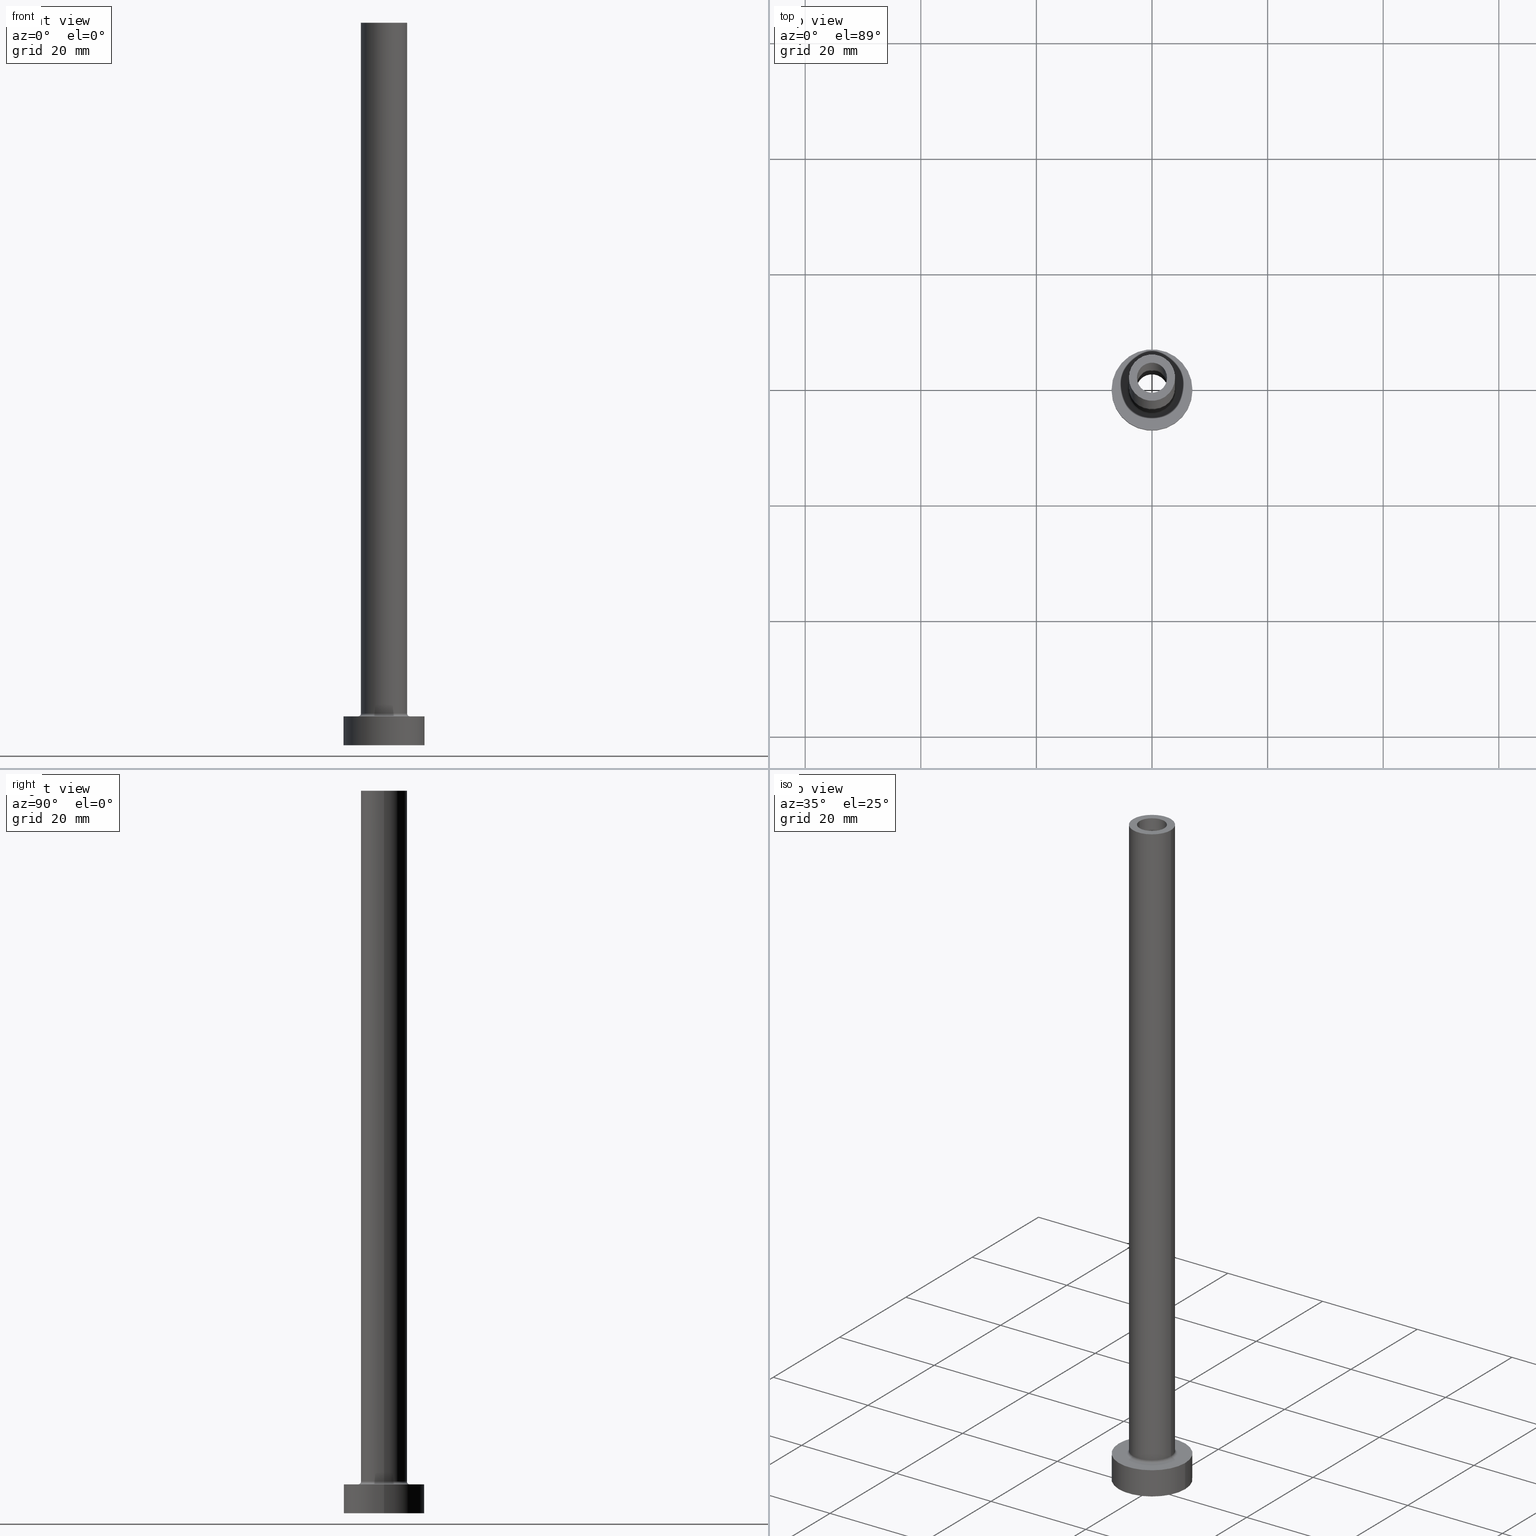
[diagram: canonical four-view strip — front | top / right | iso, engineering-drawing reading convention]
A machine part, canonical four-view strip (front | top / right | iso — engineering-drawing reading convention). The complete STEP part file that produces these views, byte-faithful:
ISO-10303-21;
HEADER;
FILE_DESCRIPTION (( 'STEP AP203' ),
    '1' );
FILE_NAME ('4615.STEP',
    '2023-02-13T10:12:05',
    ( '' ),
    ( '' ),
    'SwSTEP 2.0',
    'SolidWorks 2019',
    '' );
FILE_SCHEMA (( 'CONFIG_CONTROL_DESIGN' ));
ENDSEC;

DATA;
#1 = ORIENTED_EDGE ( 'NONE', *, *, #389, .F. ) ;
#2 = LINE ( 'NONE', #288, #407 ) ;
#3 = ORIENTED_EDGE ( 'NONE', *, *, #25, .F. ) ;
#4 = LOCAL_TIME ( 11, 12, 5.000000000000000000, #172 ) ;
#5 = CARTESIAN_POINT ( 'NONE',  ( 0.000000000000000000, 0.000000000000000000, 5.000000000000000000 ) ) ;
#6 = VERTEX_POINT ( 'NONE', #41 ) ;
#7 = CYLINDRICAL_SURFACE ( 'NONE', #377, 2.600000000000000089 ) ;
#8 = EDGE_CURVE ( 'NONE', #174, #317, #328, .T. ) ;
#9 = AXIS2_PLACEMENT_3D ( 'NONE', #343, #19, #392 ) ;
#10 = APPROVAL_PERSON_ORGANIZATION ( #87, #271, #92 ) ;
#11 = EDGE_CURVE ( 'NONE', #317, #174, #368, .T. ) ;
#12 = PERSON_AND_ORGANIZATION_ROLE ( 'creator' ) ;
#13 = DIRECTION ( 'NONE',  ( 1.000000000000000000, 0.000000000000000000, 0.000000000000000000 ) ) ;
#14 = CARTESIAN_POINT ( 'NONE',  ( 0.000000000000000000, 0.000000000000000000, 80.00000000000000000 ) ) ;
#15 = AXIS2_PLACEMENT_3D ( 'NONE', #311, #448, #65 ) ;
#16 = CARTESIAN_POINT ( 'NONE',  ( 2.750000000000000000, 3.367778697655221012E-16, 87.77817459305202874 ) ) ;
#17 = DIRECTION ( 'NONE',  ( 1.000000000000000000, 0.000000000000000000, 0.000000000000000000 ) ) ;
#18 = CC_DESIGN_DATE_AND_TIME_ASSIGNMENT ( #267, #83, ( #70 ) ) ;
#19 = DIRECTION ( 'NONE',  ( 0.000000000000000000, 0.000000000000000000, -1.000000000000000000 ) ) ;
#20 = FACE_OUTER_BOUND ( 'NONE', #183, .T. ) ;
#21 = ORIENTED_EDGE ( 'NONE', *, *, #399, .F. ) ;
#22 = DIRECTION ( 'NONE',  ( -0.000000000000000000, -0.000000000000000000, -1.000000000000000000 ) ) ;
#23 = DIRECTION ( 'NONE',  ( -1.000000000000000000, 0.000000000000000000, 0.000000000000000000 ) ) ;
#24 = ORIENTED_EDGE ( 'NONE', *, *, #367, .T. ) ;
#25 = EDGE_CURVE ( 'NONE', #394, #312, #123, .T. ) ;
#26 = CIRCLE ( 'NONE', #290, 4.000000000000000000 ) ;
#27 = UNCERTAINTY_MEASURE_WITH_UNIT (LENGTH_MEASURE( 1.000000000000000082E-05 ), #218, 'distance_accuracy_value', 'NONE');
#28 = CYLINDRICAL_SURFACE ( 'NONE', #333, 7.000000000000000000 ) ;
#29 = DIRECTION ( 'NONE',  ( 0.000000000000000000, 0.000000000000000000, -1.000000000000000000 ) ) ;
#30 = CARTESIAN_POINT ( 'NONE',  ( 0.000000000000000000, 0.000000000000000000, 5.500000000000005329 ) ) ;
#31 = DIRECTION ( 'NONE',  ( 0.000000000000000000, 0.000000000000000000, 1.000000000000000000 ) ) ;
#32 = ORIENTED_EDGE ( 'NONE', *, *, #109, .F. ) ;
#33 = FACE_OUTER_BOUND ( 'NONE', #245, .T. ) ;
#34 = ORIENTED_EDGE ( 'NONE', *, *, #441, .T. ) ;
#35 = AXIS2_PLACEMENT_3D ( 'NONE', #14, #199, #197 ) ;
#36 = APPROVAL_PERSON_ORGANIZATION ( #228, #438, #152 ) ;
#37 = ORIENTED_EDGE ( 'NONE', *, *, #193, .F. ) ;
#38 = ORIENTED_EDGE ( 'NONE', *, *, #399, .T. ) ;
#39 = APPLICATION_CONTEXT ( 'configuration controlled 3d designs of mechanical parts and assemblies' ) ;
#40 =( NAMED_UNIT ( * ) PLANE_ANGLE_UNIT ( ) SI_UNIT ( $, .RADIAN. ) );
#41 = CARTESIAN_POINT ( 'NONE',  ( -2.750000000000000000, 0.000000000000000000, 0.000000000000000000 ) ) ;
#42 = CC_DESIGN_SECURITY_CLASSIFICATION ( #411, ( #298 ) ) ;
#43 = LINE ( 'NONE', #331, #426 ) ;
#44 = EDGE_LOOP ( 'NONE', ( #144, #325 ) ) ;
#45 = CYLINDRICAL_SURFACE ( 'NONE', #261, 7.000000000000000000 ) ;
#46 = CARTESIAN_POINT ( 'NONE',  ( -4.500000000000000888, 5.510910596163089556E-16, 5.500000000000005329 ) ) ;
#47 = CIRCLE ( 'NONE', #15, 2.750000000000000000 ) ;
#48 = PRODUCT ( '4615', '4615', '', ( #81 ) ) ;
#49 = DIRECTION ( 'NONE',  ( 1.000000000000000000, 0.000000000000000000, 0.000000000000000000 ) ) ;
#50 = PERSON_AND_ORGANIZATION ( #241, #285 ) ;
#51 = DIRECTION ( 'NONE',  ( 1.224646799147353207E-16, 1.000000000000000000, -0.000000000000000000 ) ) ;
#52 = TOROIDAL_SURFACE ( 'NONE', #322, 4.500000000000000888, 0.5000000000000000000 ) ;
#53 = CARTESIAN_POINT ( 'NONE',  ( 0.000000000000000000, 0.000000000000000000, 5.500000000000005329 ) ) ;
#54 = CIRCLE ( 'NONE', #310, 7.000000000000000000 ) ;
#55 = MANIFOLD_SOLID_BREP ( 'Odebrat vysunut�m4', #107 ) ;
#56 = EDGE_CURVE ( 'NONE', #422, #226, #159, .T. ) ;
#57 = SECURITY_CLASSIFICATION_LEVEL ( 'unclassified' ) ;
#58 = VERTEX_POINT ( 'NONE', #158 ) ;
#59 = CALENDAR_DATE ( 2023, 13, 2 ) ;
#60 = CARTESIAN_POINT ( 'NONE',  ( 0.000000000000000000, 0.000000000000000000, 5.000000000000000000 ) ) ;
#61 = APPROVAL_STATUS ( 'not_yet_approved' ) ;
#62 = VERTEX_POINT ( 'NONE', #337 ) ;
#63 = CIRCLE ( 'NONE', #237, 2.600000000000000089 ) ;
#64 = DIRECTION ( 'NONE',  ( 1.000000000000000000, 0.000000000000000000, 0.000000000000000000 ) ) ;
#65 = DIRECTION ( 'NONE',  ( 1.000000000000000000, 0.000000000000000000, 0.000000000000000000 ) ) ;
#66 = ORIENTED_EDGE ( 'NONE', *, *, #295, .T. ) ;
#67 = ADVANCED_FACE ( 'NONE', ( #268 ), #374, .F. ) ;
#68 = DIRECTION ( 'NONE',  ( 0.000000000000000000, 0.000000000000000000, 1.000000000000000000 ) ) ;
#69 = EDGE_LOOP ( 'NONE', ( #247, #215 ) ) ;
#70 = PRODUCT_DEFINITION ( 'NEZN�M�', '', #298, #280 ) ;
#71 = DIRECTION ( 'NONE',  ( 1.000000000000000000, 0.000000000000000000, 0.000000000000000000 ) ) ;
#72 = LINE ( 'NONE', #146, #141 ) ;
#73 = ORIENTED_EDGE ( 'NONE', *, *, #263, .F. ) ;
#74 =( NAMED_UNIT ( * ) SI_UNIT ( $, .STERADIAN. ) SOLID_ANGLE_UNIT ( ) );
#75 = ORIENTED_EDGE ( 'NONE', *, *, #318, .F. ) ;
#76 = AXIS2_PLACEMENT_3D ( 'NONE', #118, #408, #122 ) ;
#77 = LOCAL_TIME ( 11, 12, 5.000000000000000000, #416 ) ;
#78 = DIRECTION ( 'NONE',  ( 0.000000000000000000, 0.000000000000000000, 1.000000000000000000 ) ) ;
#79 = DIRECTION ( 'NONE',  ( 1.000000000000000000, 0.000000000000000000, 0.000000000000000000 ) ) ;
#80 = ORIENTED_EDGE ( 'NONE', *, *, #8, .T. ) ;
#81 = MECHANICAL_CONTEXT ( 'NONE', #177, 'mechanical' ) ;
#82 = CARTESIAN_POINT ( 'NONE',  ( 0.000000000000000000, 0.000000000000000000, 5.500000000000005329 ) ) ;
#83 = DATE_TIME_ROLE ( 'creation_date' ) ;
#84 = DIRECTION ( 'NONE',  ( -1.000000000000000000, 0.000000000000000000, 0.000000000000000000 ) ) ;
#85 = CIRCLE ( 'NONE', #349, 7.000000000000000000 ) ;
#86 = AXIS2_PLACEMENT_3D ( 'NONE', #53, #345, #201 ) ;
#87 = PERSON_AND_ORGANIZATION ( #241, #285 ) ;
#88 = DIRECTION ( 'NONE',  ( -0.000000000000000000, -0.000000000000000000, -1.000000000000000000 ) ) ;
#89 = AXIS2_PLACEMENT_3D ( 'NONE', #320, #22, #138 ) ;
#90 = FACE_OUTER_BOUND ( 'NONE', #44, .T. ) ;
#91 = AXIS2_PLACEMENT_3D ( 'NONE', #287, #214, #103 ) ;
#92 = APPROVAL_ROLE ( '' ) ;
#93 = DIRECTION ( 'NONE',  ( 0.000000000000000000, 0.000000000000000000, 1.000000000000000000 ) ) ;
#94 = DIRECTION ( 'NONE',  ( -0.000000000000000000, -0.000000000000000000, -1.000000000000000000 ) ) ;
#95 = EDGE_LOOP ( 'NONE', ( #104, #390, #66, #219 ) ) ;
#96 = DIRECTION ( 'NONE',  ( -0.000000000000000000, -0.000000000000000000, -1.000000000000000000 ) ) ;
#97 = ORIENTED_EDGE ( 'NONE', *, *, #98, .F. ) ;
#98 = EDGE_CURVE ( 'NONE', #62, #398, #414, .T. ) ;
#99 = DIRECTION ( 'NONE',  ( 0.000000000000000000, 0.000000000000000000, 1.000000000000000000 ) ) ;
#100 = EDGE_LOOP ( 'NONE', ( #37, #24, #406, #274 ) ) ;
#101 = CARTESIAN_POINT ( 'NONE',  ( -2.750000000000000000, 0.000000000000000000, 80.00000000000000000 ) ) ;
#102 = ORIENTED_EDGE ( 'NONE', *, *, #341, .F. ) ;
#103 = DIRECTION ( 'NONE',  ( -1.000000000000000000, 0.000000000000000000, 0.000000000000000000 ) ) ;
#104 = ORIENTED_EDGE ( 'NONE', *, *, #367, .F. ) ;
#105 = CC_DESIGN_PERSON_AND_ORGANIZATION_ASSIGNMENT ( #119, #198, ( #70 ) ) ;
#106 = ORIENTED_EDGE ( 'NONE', *, *, #235, .F. ) ;
#107 = CLOSED_SHELL ( 'NONE', ( #308, #160, #335, #429, #184, #120, #254, #379, #190, #439, #143, #360, #363, #67 ) ) ;
#108 = AXIS2_PLACEMENT_3D ( 'NONE', #244, #31, #168 ) ;
#109 = EDGE_CURVE ( 'NONE', #170, #307, #126, .T. ) ;
#110 = ORIENTED_EDGE ( 'NONE', *, *, #263, .T. ) ;
#111 = ORIENTED_EDGE ( 'NONE', *, *, #341, .T. ) ;
#112 = PRODUCT_RELATED_PRODUCT_CATEGORY ( 'detail', '', ( #48 ) ) ;
#113 = ORIENTED_EDGE ( 'NONE', *, *, #147, .T. ) ;
#114 = CIRCLE ( 'NONE', #89, 4.500000000000000888 ) ;
#115 = TOROIDAL_SURFACE ( 'NONE', #86, 4.500000000000000888, 0.5000000000000000000 ) ;
#116 = FACE_OUTER_BOUND ( 'NONE', #259, .T. ) ;
#117 = CARTESIAN_POINT ( 'NONE',  ( 0.000000000000000000, 0.000000000000000000, 0.000000000000000000 ) ) ;
#118 = CARTESIAN_POINT ( 'NONE',  ( 0.000000000000000000, 0.000000000000000000, 125.0000000000000000 ) ) ;
#119 = PERSON_AND_ORGANIZATION ( #241, #285 ) ;
#120 = ADVANCED_FACE ( 'NONE', ( #410 ), #45, .T. ) ;
#121 = APPROVAL_DATE_TIME ( #376, #395 ) ;
#122 = DIRECTION ( 'NONE',  ( -1.000000000000000000, 0.000000000000000000, 0.000000000000000000 ) ) ;
#123 = CIRCLE ( 'NONE', #35, 2.750000000000000000 ) ;
#124 = AXIS2_PLACEMENT_3D ( 'NONE', #142, #255, #369 ) ;
#125 = PRODUCT_DEFINITION_SHAPE ( 'NONE', 'NONE',  #70 ) ;
#126 = LINE ( 'NONE', #229, #404 ) ;
#127 = EDGE_CURVE ( 'NONE', #62, #293, #458, .T. ) ;
#128 = PLANE ( 'NONE',  #108 ) ;
#129 = CARTESIAN_POINT ( 'NONE',  ( -2.600000000000000089, 0.000000000000000000, 80.00000000000000000 ) ) ;
#130 = DIRECTION ( 'NONE',  ( 1.000000000000000000, 0.000000000000000000, 0.000000000000000000 ) ) ;
#131 = CIRCLE ( 'NONE', #262, 2.750000000000000000 ) ;
#132 = ORIENTED_EDGE ( 'NONE', *, *, #25, .T. ) ;
#133 = DIRECTION ( 'NONE',  ( 1.000000000000000000, 0.000000000000000000, 0.000000000000000000 ) ) ;
#134 = VERTEX_POINT ( 'NONE', #195 ) ;
#135 = CARTESIAN_POINT ( 'NONE',  ( 0.000000000000000000, 0.000000000000000000, 5.500000000000005329 ) ) ;
#136 = DIRECTION ( 'NONE',  ( -0.000000000000000000, -0.000000000000000000, -1.000000000000000000 ) ) ;
#137 = ORIENTED_EDGE ( 'NONE', *, *, #233, .T. ) ;
#138 = DIRECTION ( 'NONE',  ( 1.000000000000000000, 0.000000000000000000, 0.000000000000000000 ) ) ;
#139 = DIRECTION ( 'NONE',  ( 0.000000000000000000, 0.000000000000000000, 1.000000000000000000 ) ) ;
#140 = ORIENTED_EDGE ( 'NONE', *, *, #147, .F. ) ;
#141 = VECTOR ( 'NONE', #372, 1000.000000000000000 ) ;
#142 = CARTESIAN_POINT ( 'NONE',  ( 0.000000000000000000, 0.000000000000000000, 125.0000000000000000 ) ) ;
#143 = ADVANCED_FACE ( 'NONE', ( #334 ), #52, .F. ) ;
#144 = ORIENTED_EDGE ( 'NONE', *, *, #292, .F. ) ;
#145 = APPROVAL_PERSON_ORGANIZATION ( #50, #395, #196 ) ;
#146 = CARTESIAN_POINT ( 'NONE',  ( -2.600000000000000089, 0.000000000000000000, 125.0000000000000000 ) ) ;
#147 = EDGE_CURVE ( 'NONE', #312, #58, #275, .T. ) ;
#148 = EDGE_LOOP ( 'NONE', ( #97, #361, #251, #277 ) ) ;
#149 = CARTESIAN_POINT ( 'NONE',  ( -4.500000000000000888, 5.510910596163088569E-16, 5.000000000000002665 ) ) ;
#150 = PERSON_AND_ORGANIZATION_ROLE ( 'design_owner' ) ;
#151 = LOCAL_TIME ( 11, 12, 5.000000000000000000, #230 ) ;
#152 = APPROVAL_ROLE ( '' ) ;
#153 = DIRECTION ( 'NONE',  ( 0.000000000000000000, 0.000000000000000000, 1.000000000000000000 ) ) ;
#154 = EDGE_CURVE ( 'NONE', #428, #293, #114, .T. ) ;
#155 = COORDINATED_UNIVERSAL_TIME_OFFSET ( 1, 0, .AHEAD. ) ;
#156 = CARTESIAN_POINT ( 'NONE',  ( 0.000000000000000000, 0.000000000000000000, 80.00000000000000000 ) ) ;
#157 = PERSON_AND_ORGANIZATION ( #241, #285 ) ;
#158 = CARTESIAN_POINT ( 'NONE',  ( 2.750000000000000000, 3.367778697655221012E-16, 0.000000000000000000 ) ) ;
#159 = CIRCLE ( 'NONE', #283, 4.000000000000000000 ) ;
#160 = ADVANCED_FACE ( 'NONE', ( #344 ), #351, .F. ) ;
#161 = CARTESIAN_POINT ( 'NONE',  ( 0.000000000000000000, 0.000000000000000000, 125.0000000000000000 ) ) ;
#162 = CARTESIAN_POINT ( 'NONE',  ( 0.000000000000000000, 0.000000000000000000, 5.000000000000000000 ) ) ;
#163 = CARTESIAN_POINT ( 'NONE',  ( 4.000000000000000000, 4.898587196589412829E-16, 5.500000000000005329 ) ) ;
#164 = DIRECTION ( 'NONE',  ( -0.000000000000000000, -0.000000000000000000, -1.000000000000000000 ) ) ;
#165 = CYLINDRICAL_SURFACE ( 'NONE', #217, 2.750000000000000000 ) ;
#166 = VERTEX_POINT ( 'NONE', #412 ) ;
#167 = AXIS2_PLACEMENT_3D ( 'NONE', #173, #447, #423 ) ;
#168 = DIRECTION ( 'NONE',  ( 1.000000000000000000, 0.000000000000000000, -0.000000000000000000 ) ) ;
#169 = AXIS2_PLACEMENT_3D ( 'NONE', #273, #212, #130 ) ;
#170 = VERTEX_POINT ( 'NONE', #278 ) ;
#171 = ORIENTED_EDGE ( 'NONE', *, *, #269, .F. ) ;
#172 = COORDINATED_UNIVERSAL_TIME_OFFSET ( 1, 0, .AHEAD. ) ;
#173 = CARTESIAN_POINT ( 'NONE',  ( 0.000000000000000000, 0.000000000000000000, 125.0000000000000000 ) ) ;
#174 = VERTEX_POINT ( 'NONE', #129 ) ;
#175 = DIRECTION ( 'NONE',  ( 0.000000000000000000, 0.000000000000000000, 1.000000000000000000 ) ) ;
#176 = EDGE_CURVE ( 'NONE', #385, #134, #302, .T. ) ;
#177 = APPLICATION_CONTEXT ( 'configuration controlled 3d designs of mechanical parts and assemblies' ) ;
#178 = ORIENTED_EDGE ( 'NONE', *, *, #176, .T. ) ;
#179 = CIRCLE ( 'NONE', #391, 2.750000000000000000 ) ;
#180 = FACE_OUTER_BOUND ( 'NONE', #321, .T. ) ;
#181 = ORIENTED_EDGE ( 'NONE', *, *, #441, .F. ) ;
#182 = DIRECTION ( 'NONE',  ( 1.000000000000000000, 0.000000000000000000, 0.000000000000000000 ) ) ;
#183 = EDGE_LOOP ( 'NONE', ( #140, #260, #188, #256 ) ) ;
#184 = ADVANCED_FACE ( 'NONE', ( #387 ), #28, .T. ) ;
#185 = DIRECTION ( 'NONE',  ( -0.000000000000000000, -0.000000000000000000, -1.000000000000000000 ) ) ;
#186 = EDGE_CURVE ( 'NONE', #398, #428, #400, .T. ) ;
#187 = AXIS2_PLACEMENT_3D ( 'NONE', #46, #51, #272 ) ;
#188 = ORIENTED_EDGE ( 'NONE', *, *, #209, .T. ) ;
#189 = CARTESIAN_POINT ( 'NONE',  ( 0.000000000000000000, 0.000000000000000000, 0.000000000000000000 ) ) ;
#190 = ADVANCED_FACE ( 'NONE', ( #453 ), #205, .T. ) ;
#191 = APPROVAL_STATUS ( 'not_yet_approved' ) ;
#192 = CARTESIAN_POINT ( 'NONE',  ( 0.000000000000000000, 0.000000000000000000, 5.000000000000000000 ) ) ;
#193 = EDGE_CURVE ( 'NONE', #226, #422, #309, .T. ) ;
#194 = AXIS2_PLACEMENT_3D ( 'NONE', #189, #78, #224 ) ;
#195 = CARTESIAN_POINT ( 'NONE',  ( 7.000000000000000000, 8.572527594031473190E-16, 0.000000000000000000 ) ) ;
#196 = APPROVAL_ROLE ( '' ) ;
#197 = DIRECTION ( 'NONE',  ( 1.000000000000000000, 0.000000000000000000, 0.000000000000000000 ) ) ;
#198 = PERSON_AND_ORGANIZATION_ROLE ( 'creator' ) ;
#199 = DIRECTION ( 'NONE',  ( 0.000000000000000000, 0.000000000000000000, 1.000000000000000000 ) ) ;
#200 = CIRCLE ( 'NONE', #459, 2.600000000000000089 ) ;
#201 = DIRECTION ( 'NONE',  ( 1.000000000000000000, 0.000000000000000000, 0.000000000000000000 ) ) ;
#202 = CARTESIAN_POINT ( 'NONE',  ( 0.000000000000000000, 0.000000000000000000, 0.000000000000000000 ) ) ;
#203 = ORIENTED_EDGE ( 'NONE', *, *, #56, .T. ) ;
#204 = SHAPE_DEFINITION_REPRESENTATION ( #125, #357 ) ;
#205 = CYLINDRICAL_SURFACE ( 'NONE', #167, 4.000000000000000000 ) ;
#206 = CARTESIAN_POINT ( 'NONE',  ( -2.600000000000000089, 0.000000000000000000, 125.0000000000000000 ) ) ;
#207 = LINE ( 'NONE', #249, #223 ) ;
#208 = LOCAL_TIME ( 11, 12, 5.000000000000000000, #380 ) ;
#209 = EDGE_CURVE ( 'NONE', #394, #6, #211, .T. ) ;
#210 = CALENDAR_DATE ( 2023, 13, 2 ) ;
#211 = LINE ( 'NONE', #243, #231 ) ;
#212 = DIRECTION ( 'NONE',  ( 0.000000000000000000, 0.000000000000000000, 1.000000000000000000 ) ) ;
#213 = EDGE_LOOP ( 'NONE', ( #3, #1 ) ) ;
#214 = DIRECTION ( 'NONE',  ( -0.000000000000000000, -0.000000000000000000, -1.000000000000000000 ) ) ;
#215 = ORIENTED_EDGE ( 'NONE', *, *, #352, .T. ) ;
#216 = VECTOR ( 'NONE', #88, 1000.000000000000000 ) ;
#217 = AXIS2_PLACEMENT_3D ( 'NONE', #446, #347, #23 ) ;
#218 =( LENGTH_UNIT ( ) NAMED_UNIT ( * ) SI_UNIT ( .MILLI., .METRE. ) );
#219 = ORIENTED_EDGE ( 'NONE', *, *, #98, .T. ) ;
#220 = DIRECTION ( 'NONE',  ( 0.000000000000000000, 0.000000000000000000, 1.000000000000000000 ) ) ;
#221 = EDGE_CURVE ( 'NONE', #398, #62, #26, .T. ) ;
#222 = ORIENTED_EDGE ( 'NONE', *, *, #193, .T. ) ;
#223 = VECTOR ( 'NONE', #136, 1000.000000000000000 ) ;
#224 = DIRECTION ( 'NONE',  ( 1.000000000000000000, 0.000000000000000000, 0.000000000000000000 ) ) ;
#225 = APPROVAL_STATUS ( 'not_yet_approved' ) ;
#226 = VERTEX_POINT ( 'NONE', #362 ) ;
#227 = CC_DESIGN_PERSON_AND_ORGANIZATION_ASSIGNMENT ( #443, #150, ( #48 ) ) ;
#228 = PERSON_AND_ORGANIZATION ( #241, #285 ) ;
#229 = CARTESIAN_POINT ( 'NONE',  ( -7.000000000000000000, 0.000000000000000000, 5.000000000000000000 ) ) ;
#230 = COORDINATED_UNIVERSAL_TIME_OFFSET ( 1, 0, .AHEAD. ) ;
#231 = VECTOR ( 'NONE', #353, 1000.000000000000000 ) ;
#232 = AXIS2_PLACEMENT_3D ( 'NONE', #281, #306, #239 ) ;
#233 = EDGE_CURVE ( 'NONE', #134, #307, #85, .T. ) ;
#234 = APPLICATION_PROTOCOL_DEFINITION ( 'international standard', 'config_control_design', 1994, #177 ) ;
#235 = EDGE_CURVE ( 'NONE', #348, #166, #200, .T. ) ;
#236 = AXIS2_PLACEMENT_3D ( 'NONE', #378, #297, #49 ) ;
#237 = AXIS2_PLACEMENT_3D ( 'NONE', #452, #139, #279 ) ;
#238 = DIRECTION ( 'NONE',  ( -1.000000000000000000, 0.000000000000000000, 0.000000000000000000 ) ) ;
#239 = DIRECTION ( 'NONE',  ( 1.000000000000000000, 0.000000000000000000, -0.000000000000000000 ) ) ;
#240 = ORIENTED_EDGE ( 'NONE', *, *, #292, .T. ) ;
#241 = PERSON ( 'NEUR�EN�', 'NEUR�EN�', 'NEUR�EN�', ('NEUR�EN�'), ('NEUR�EN�'), ('NEUR�EN�') ) ;
#242 = APPROVAL_DATE_TIME ( #314, #271 ) ;
#243 = CARTESIAN_POINT ( 'NONE',  ( -2.750000000000000000, 0.000000000000000000, 87.77817459305202874 ) ) ;
#244 = CARTESIAN_POINT ( 'NONE',  ( 0.000000000000000000, 0.000000000000000000, 80.00000000000000000 ) ) ;
#245 = EDGE_LOOP ( 'NONE', ( #38, #111 ) ) ;
#246 = DIRECTION ( 'NONE',  ( 1.000000000000000000, 0.000000000000000000, 0.000000000000000000 ) ) ;
#247 = ORIENTED_EDGE ( 'NONE', *, *, #154, .T. ) ;
#248 = AXIS2_PLACEMENT_3D ( 'NONE', #156, #153, #381 ) ;
#249 = CARTESIAN_POINT ( 'NONE',  ( 4.000000000000000000, 4.898587196589412829E-16, 125.0000000000000000 ) ) ;
#250 = LOCAL_TIME ( 11, 12, 5.000000000000000000, #155 ) ;
#251 = ORIENTED_EDGE ( 'NONE', *, *, #154, .F. ) ;
#252 = DIRECTION ( 'NONE',  ( 0.000000000000000000, 0.000000000000000000, -1.000000000000000000 ) ) ;
#253 = DIRECTION ( 'NONE',  ( -1.000000000000000000, 0.000000000000000000, 0.000000000000000000 ) ) ;
#254 = ADVANCED_FACE ( 'NONE', ( #403, #33 ), #326, .T. ) ;
#255 = DIRECTION ( 'NONE',  ( 0.000000000000000000, 0.000000000000000000, 1.000000000000000000 ) ) ;
#256 = ORIENTED_EDGE ( 'NONE', *, *, #318, .T. ) ;
#257 = CIRCLE ( 'NONE', #194, 7.000000000000000000 ) ;
#258 = ORIENTED_EDGE ( 'NONE', *, *, #221, .F. ) ;
#259 = EDGE_LOOP ( 'NONE', ( #332, #110, #330, #171 ) ) ;
#260 = ORIENTED_EDGE ( 'NONE', *, *, #389, .T. ) ;
#261 = AXIS2_PLACEMENT_3D ( 'NONE', #192, #444, #84 ) ;
#262 = AXIS2_PLACEMENT_3D ( 'NONE', #202, #96, #246 ) ;
#263 = EDGE_CURVE ( 'NONE', #166, #317, #2, .T. ) ;
#264 = CARTESIAN_POINT ( 'NONE',  ( 0.000000000000000000, 0.000000000000000000, 125.0000000000000000 ) ) ;
#265 = DIRECTION ( 'NONE',  ( 0.000000000000000000, 0.000000000000000000, 1.000000000000000000 ) ) ;
#266 = DIRECTION ( 'NONE',  ( 1.000000000000000000, 0.000000000000000000, 0.000000000000000000 ) ) ;
#267 = DATE_AND_TIME ( #338, #250 ) ;
#268 = FACE_OUTER_BOUND ( 'NONE', #294, .T. ) ;
#269 = EDGE_CURVE ( 'NONE', #348, #174, #72, .T. ) ;
#270 = CC_DESIGN_APPROVAL ( #271, ( #411 ) ) ;
#271 = APPROVAL ( #61, 'NEUR�EN�' ) ;
#272 = DIRECTION ( 'NONE',  ( -1.000000000000000000, 1.224646799147351482E-16, 0.000000000000000000 ) ) ;
#273 = CARTESIAN_POINT ( 'NONE',  ( 0.000000000000000000, 0.000000000000000000, 5.000000000000000000 ) ) ;
#274 = ORIENTED_EDGE ( 'NONE', *, *, #295, .F. ) ;
#275 = LINE ( 'NONE', #16, #358 ) ;
#276 = CYLINDRICAL_SURFACE ( 'NONE', #91, 4.000000000000000000 ) ;
#277 = ORIENTED_EDGE ( 'NONE', *, *, #186, .F. ) ;
#278 = CARTESIAN_POINT ( 'NONE',  ( -7.000000000000000000, 0.000000000000000000, 5.000000000000000000 ) ) ;
#279 = DIRECTION ( 'NONE',  ( 1.000000000000000000, 0.000000000000000000, 0.000000000000000000 ) ) ;
#280 = DESIGN_CONTEXT ( 'detailed design', #39, 'design' ) ;
#281 = CARTESIAN_POINT ( 'NONE',  ( 0.000000000000000000, 0.000000000000000000, 0.000000000000000000 ) ) ;
#282 = EDGE_LOOP ( 'NONE', ( #75, #181 ) ) ;
#283 = AXIS2_PLACEMENT_3D ( 'NONE', #161, #301, #266 ) ;
#284 = CC_DESIGN_PERSON_AND_ORGANIZATION_ASSIGNMENT ( #419, #304, ( #411 ) ) ;
#285 = ORGANIZATION ( 'NEUR�EN�', 'NEUR�EN�', '' ) ;
#286 = DIRECTION ( 'NONE',  ( 1.000000000000000000, 0.000000000000000000, 0.000000000000000000 ) ) ;
#287 = CARTESIAN_POINT ( 'NONE',  ( 0.000000000000000000, 0.000000000000000000, 125.0000000000000000 ) ) ;
#288 = CARTESIAN_POINT ( 'NONE',  ( 2.600000000000000089, 3.184081677783117698E-16, 125.0000000000000000 ) ) ;
#289 = ORIENTED_EDGE ( 'NONE', *, *, #209, .F. ) ;
#290 = AXIS2_PLACEMENT_3D ( 'NONE', #30, #355, #286 ) ;
#291 = CC_DESIGN_APPROVAL ( #438, ( #70 ) ) ;
#292 = EDGE_CURVE ( 'NONE', #307, #134, #257, .T. ) ;
#293 = VERTEX_POINT ( 'NONE', #149 ) ;
#294 = EDGE_LOOP ( 'NONE', ( #73, #346, #370, #364 ) ) ;
#295 = EDGE_CURVE ( 'NONE', #422, #62, #43, .T. ) ;
#296 = DIRECTION ( 'NONE',  ( -0.000000000000000000, -0.000000000000000000, -1.000000000000000000 ) ) ;
#297 = DIRECTION ( 'NONE',  ( 0.000000000000000000, 0.000000000000000000, 1.000000000000000000 ) ) ;
#298 = PRODUCT_DEFINITION_FORMATION_WITH_SPECIFIED_SOURCE ( 'LIBOVOLN�', '', #48, .NOT_KNOWN. ) ;
#299 = APPLICATION_PROTOCOL_DEFINITION ( 'international standard', 'config_control_design', 1994, #39 ) ;
#300 = DIRECTION ( 'NONE',  ( -0.000000000000000000, -0.000000000000000000, -1.000000000000000000 ) ) ;
#301 = DIRECTION ( 'NONE',  ( 0.000000000000000000, 0.000000000000000000, 1.000000000000000000 ) ) ;
#302 = LINE ( 'NONE', #383, #216 ) ;
#303 = CARTESIAN_POINT ( 'NONE',  ( 2.750000000000000000, 3.367778697655221012E-16, 80.00000000000000000 ) ) ;
#304 = PERSON_AND_ORGANIZATION_ROLE ( 'classification_officer' ) ;
#305 = DIRECTION ( 'NONE',  ( 0.000000000000000000, -1.000000000000000000, 0.000000000000000000 ) ) ;
#306 = DIRECTION ( 'NONE',  ( 0.000000000000000000, 0.000000000000000000, 1.000000000000000000 ) ) ;
#307 = VERTEX_POINT ( 'NONE', #436 ) ;
#308 = ADVANCED_FACE ( 'NONE', ( #116 ), #7, .F. ) ;
#309 = CIRCLE ( 'NONE', #432, 4.000000000000000000 ) ;
#310 = AXIS2_PLACEMENT_3D ( 'NONE', #60, #99, #316 ) ;
#311 = CARTESIAN_POINT ( 'NONE',  ( 0.000000000000000000, 0.000000000000000000, 80.00000000000000000 ) ) ;
#312 = VERTEX_POINT ( 'NONE', #303 ) ;
#313 = EDGE_CURVE ( 'NONE', #166, #348, #63, .T. ) ;
#314 = DATE_AND_TIME ( #59, #77 ) ;
#315 = CARTESIAN_POINT ( 'NONE',  ( 4.500000000000000888, 0.000000000000000000, 5.500000000000005329 ) ) ;
#316 = DIRECTION ( 'NONE',  ( 1.000000000000000000, 0.000000000000000000, 0.000000000000000000 ) ) ;
#317 = VERTEX_POINT ( 'NONE', #421 ) ;
#318 = EDGE_CURVE ( 'NONE', #6, #58, #131, .T. ) ;
#319 = DATE_AND_TIME ( #210, #4 ) ;
#320 = CARTESIAN_POINT ( 'NONE',  ( 0.000000000000000000, 0.000000000000000000, 5.000000000000000000 ) ) ;
#321 = EDGE_LOOP ( 'NONE', ( #203, #222 ) ) ;
#322 = AXIS2_PLACEMENT_3D ( 'NONE', #135, #451, #133 ) ;
#323 = AXIS2_PLACEMENT_3D ( 'NONE', #388, #94, #17 ) ;
#324 = EDGE_LOOP ( 'NONE', ( #80, #425 ) ) ;
#325 = ORIENTED_EDGE ( 'NONE', *, *, #233, .F. ) ;
#326 = PLANE ( 'NONE',  #329 ) ;
#327 = ORIENTED_EDGE ( 'NONE', *, *, #352, .F. ) ;
#328 = CIRCLE ( 'NONE', #236, 2.600000000000000089 ) ;
#329 = AXIS2_PLACEMENT_3D ( 'NONE', #5, #175, #365 ) ;
#330 = ORIENTED_EDGE ( 'NONE', *, *, #8, .F. ) ;
#331 = CARTESIAN_POINT ( 'NONE',  ( -4.000000000000000000, 0.000000000000000000, 125.0000000000000000 ) ) ;
#332 = ORIENTED_EDGE ( 'NONE', *, *, #235, .T. ) ;
#333 = AXIS2_PLACEMENT_3D ( 'NONE', #162, #164, #238 ) ;
#334 = FACE_OUTER_BOUND ( 'NONE', #430, .T. ) ;
#335 = ADVANCED_FACE ( 'NONE', ( #386 ), #115, .F. ) ;
#336 = CALENDAR_DATE ( 2023, 13, 2 ) ;
#337 = CARTESIAN_POINT ( 'NONE',  ( -4.000000000000000000, 0.000000000000000000, 5.500000000000005329 ) ) ;
#338 = CALENDAR_DATE ( 2023, 13, 2 ) ;
#339 = AXIS2_PLACEMENT_3D ( 'NONE', #82, #445, #13 ) ;
#340 = AXIS2_PLACEMENT_3D ( 'NONE', #117, #265, #79 ) ;
#341 = EDGE_CURVE ( 'NONE', #385, #170, #54, .T. ) ;
#342 = PERSON_AND_ORGANIZATION_ROLE ( 'design_supplier' ) ;
#343 = CARTESIAN_POINT ( 'NONE',  ( 0.000000000000000000, 0.000000000000000000, 87.77817459305202874 ) ) ;
#344 = FACE_OUTER_BOUND ( 'NONE', #434, .T. ) ;
#345 = DIRECTION ( 'NONE',  ( 0.000000000000000000, 0.000000000000000000, 1.000000000000000000 ) ) ;
#346 = ORIENTED_EDGE ( 'NONE', *, *, #313, .T. ) ;
#347 = DIRECTION ( 'NONE',  ( 0.000000000000000000, 0.000000000000000000, -1.000000000000000000 ) ) ;
#348 = VERTEX_POINT ( 'NONE', #206 ) ;
#349 = AXIS2_PLACEMENT_3D ( 'NONE', #460, #220, #182 ) ;
#350 = CIRCLE ( 'NONE', #323, 4.500000000000000888 ) ;
#351 = CYLINDRICAL_SURFACE ( 'NONE', #9, 2.750000000000000000 ) ;
#352 = EDGE_CURVE ( 'NONE', #293, #428, #350, .T. ) ;
#353 = DIRECTION ( 'NONE',  ( 0.000000000000000000, 0.000000000000000000, -1.000000000000000000 ) ) ;
#354 = CARTESIAN_POINT ( 'NONE',  ( -4.000000000000000000, 0.000000000000000000, 125.0000000000000000 ) ) ;
#355 = DIRECTION ( 'NONE',  ( 0.000000000000000000, 0.000000000000000000, 1.000000000000000000 ) ) ;
#356 = PLANE ( 'NONE',  #124 ) ;
#357 = ADVANCED_BREP_SHAPE_REPRESENTATION ( '4615', ( #55, #340 ), #437 ) ;
#358 = VECTOR ( 'NONE', #420, 1000.000000000000000 ) ;
#359 = DIRECTION ( 'NONE',  ( 1.000000000000000000, 0.000000000000000000, 0.000000000000000000 ) ) ;
#360 = ADVANCED_FACE ( 'NONE', ( #20 ), #165, .F. ) ;
#361 = ORIENTED_EDGE ( 'NONE', *, *, #127, .T. ) ;
#362 = CARTESIAN_POINT ( 'NONE',  ( 4.000000000000000000, 4.898587196589412829E-16, 125.0000000000000000 ) ) ;
#363 = ADVANCED_FACE ( 'NONE', ( #418, #454 ), #128, .F. ) ;
#364 = ORIENTED_EDGE ( 'NONE', *, *, #11, .F. ) ;
#365 = DIRECTION ( 'NONE',  ( 1.000000000000000000, 0.000000000000000000, -0.000000000000000000 ) ) ;
#366 = ORIENTED_EDGE ( 'NONE', *, *, #186, .T. ) ;
#367 = EDGE_CURVE ( 'NONE', #226, #398, #207, .T. ) ;
#368 = CIRCLE ( 'NONE', #248, 2.600000000000000089 ) ;
#369 = DIRECTION ( 'NONE',  ( 1.000000000000000000, 0.000000000000000000, -0.000000000000000000 ) ) ;
#370 = ORIENTED_EDGE ( 'NONE', *, *, #269, .T. ) ;
#371 = CC_DESIGN_PERSON_AND_ORGANIZATION_ASSIGNMENT ( #157, #342, ( #298 ) ) ;
#372 = DIRECTION ( 'NONE',  ( 0.000000000000000000, 0.000000000000000000, -1.000000000000000000 ) ) ;
#373 = PERSON_AND_ORGANIZATION ( #241, #285 ) ;
#374 = CYLINDRICAL_SURFACE ( 'NONE', #76, 2.600000000000000089 ) ;
#375 = CC_DESIGN_PERSON_AND_ORGANIZATION_ASSIGNMENT ( #373, #12, ( #298 ) ) ;
#376 = DATE_AND_TIME ( #336, #151 ) ;
#377 = AXIS2_PLACEMENT_3D ( 'NONE', #264, #29, #253 ) ;
#378 = CARTESIAN_POINT ( 'NONE',  ( 0.000000000000000000, 0.000000000000000000, 80.00000000000000000 ) ) ;
#379 = ADVANCED_FACE ( 'NONE', ( #427, #90 ), #456, .F. ) ;
#380 = COORDINATED_UNIVERSAL_TIME_OFFSET ( 1, 0, .AHEAD. ) ;
#381 = DIRECTION ( 'NONE',  ( 1.000000000000000000, 0.000000000000000000, 0.000000000000000000 ) ) ;
#382 = CIRCLE ( 'NONE', #169, 7.000000000000000000 ) ;
#383 = CARTESIAN_POINT ( 'NONE',  ( 7.000000000000000000, 8.572527594031473190E-16, 5.000000000000000000 ) ) ;
#384 = FACE_OUTER_BOUND ( 'NONE', #100, .T. ) ;
#385 = VERTEX_POINT ( 'NONE', #424 ) ;
#386 = FACE_OUTER_BOUND ( 'NONE', #148, .T. ) ;
#387 = FACE_OUTER_BOUND ( 'NONE', #431, .T. ) ;
#388 = CARTESIAN_POINT ( 'NONE',  ( 0.000000000000000000, 0.000000000000000000, 5.000000000000000000 ) ) ;
#389 = EDGE_CURVE ( 'NONE', #312, #394, #47, .T. ) ;
#390 = ORIENTED_EDGE ( 'NONE', *, *, #56, .F. ) ;
#391 = AXIS2_PLACEMENT_3D ( 'NONE', #397, #185, #71 ) ;
#392 = DIRECTION ( 'NONE',  ( -1.000000000000000000, 0.000000000000000000, 0.000000000000000000 ) ) ;
#393 = FACE_BOUND ( 'NONE', #402, .T. ) ;
#394 = VERTEX_POINT ( 'NONE', #101 ) ;
#395 = APPROVAL ( #225, 'NEUR�EN�' ) ;
#396 = CARTESIAN_POINT ( 'NONE',  ( 0.000000000000000000, 0.000000000000000000, 125.0000000000000000 ) ) ;
#397 = CARTESIAN_POINT ( 'NONE',  ( 0.000000000000000000, 0.000000000000000000, 0.000000000000000000 ) ) ;
#398 = VERTEX_POINT ( 'NONE', #163 ) ;
#399 = EDGE_CURVE ( 'NONE', #170, #385, #382, .T. ) ;
#400 = CIRCLE ( 'NONE', #449, 0.5000000000000004441 ) ;
#401 = ORIENTED_EDGE ( 'NONE', *, *, #127, .F. ) ;
#402 = EDGE_LOOP ( 'NONE', ( #106, #455 ) ) ;
#403 = FACE_BOUND ( 'NONE', #69, .T. ) ;
#404 = VECTOR ( 'NONE', #300, 1000.000000000000000 ) ;
#405 = DATE_AND_TIME ( #440, #208 ) ;
#406 = ORIENTED_EDGE ( 'NONE', *, *, #221, .T. ) ;
#407 = VECTOR ( 'NONE', #433, 1000.000000000000000 ) ;
#408 = DIRECTION ( 'NONE',  ( 0.000000000000000000, 0.000000000000000000, -1.000000000000000000 ) ) ;
#409 = CC_DESIGN_DATE_AND_TIME_ASSIGNMENT ( #319, #450, ( #411 ) ) ;
#410 = FACE_OUTER_BOUND ( 'NONE', #461, .T. ) ;
#411 = SECURITY_CLASSIFICATION ( '', '', #57 ) ;
#412 = CARTESIAN_POINT ( 'NONE',  ( 2.600000000000000089, 3.184081677783117698E-16, 125.0000000000000000 ) ) ;
#413 = CARTESIAN_POINT ( 'NONE',  ( 4.500000000000000888, 0.000000000000000000, 5.000000000000002665 ) ) ;
#414 = CIRCLE ( 'NONE', #339, 4.000000000000000000 ) ;
#415 = CC_DESIGN_APPROVAL ( #395, ( #298 ) ) ;
#416 = COORDINATED_UNIVERSAL_TIME_OFFSET ( 1, 0, .AHEAD. ) ;
#417 = CARTESIAN_POINT ( 'NONE',  ( 0.000000000000000000, 0.000000000000000000, 125.0000000000000000 ) ) ;
#418 = FACE_BOUND ( 'NONE', #324, .T. ) ;
#419 = PERSON_AND_ORGANIZATION ( #241, #285 ) ;
#420 = DIRECTION ( 'NONE',  ( 0.000000000000000000, 0.000000000000000000, -1.000000000000000000 ) ) ;
#421 = CARTESIAN_POINT ( 'NONE',  ( 2.600000000000000089, 3.184081677783117698E-16, 80.00000000000000000 ) ) ;
#422 = VERTEX_POINT ( 'NONE', #354 ) ;
#423 = DIRECTION ( 'NONE',  ( -1.000000000000000000, 0.000000000000000000, 0.000000000000000000 ) ) ;
#424 = CARTESIAN_POINT ( 'NONE',  ( 7.000000000000000000, 8.572527594031473190E-16, 5.000000000000000000 ) ) ;
#425 = ORIENTED_EDGE ( 'NONE', *, *, #11, .T. ) ;
#426 = VECTOR ( 'NONE', #296, 1000.000000000000000 ) ;
#427 = FACE_BOUND ( 'NONE', #282, .T. ) ;
#428 = VERTEX_POINT ( 'NONE', #413 ) ;
#429 = ADVANCED_FACE ( 'NONE', ( #384 ), #276, .T. ) ;
#430 = EDGE_LOOP ( 'NONE', ( #401, #258, #366, #327 ) ) ;
#431 = EDGE_LOOP ( 'NONE', ( #102, #178, #137, #32 ) ) ;
#432 = AXIS2_PLACEMENT_3D ( 'NONE', #417, #93, #64 ) ;
#433 = DIRECTION ( 'NONE',  ( 0.000000000000000000, 0.000000000000000000, -1.000000000000000000 ) ) ;
#434 = EDGE_LOOP ( 'NONE', ( #132, #113, #34, #289 ) ) ;
#435 = ORIENTED_EDGE ( 'NONE', *, *, #176, .F. ) ;
#436 = CARTESIAN_POINT ( 'NONE',  ( -7.000000000000000000, 0.000000000000000000, 0.000000000000000000 ) ) ;
#437 =( GEOMETRIC_REPRESENTATION_CONTEXT ( 3 ) GLOBAL_UNCERTAINTY_ASSIGNED_CONTEXT ( ( #27 ) ) GLOBAL_UNIT_ASSIGNED_CONTEXT ( ( #218, #40, #74 ) ) REPRESENTATION_CONTEXT ( 'NONE', 'WORKASPACE' ) );
#438 = APPROVAL ( #191, 'NEUR�EN�' ) ;
#439 = ADVANCED_FACE ( 'NONE', ( #393, #180 ), #356, .T. ) ;
#440 = CALENDAR_DATE ( 2023, 13, 2 ) ;
#441 = EDGE_CURVE ( 'NONE', #58, #6, #179, .T. ) ;
#442 = APPROVAL_DATE_TIME ( #405, #438 ) ;
#443 = PERSON_AND_ORGANIZATION ( #241, #285 ) ;
#444 = DIRECTION ( 'NONE',  ( -0.000000000000000000, -0.000000000000000000, -1.000000000000000000 ) ) ;
#445 = DIRECTION ( 'NONE',  ( 0.000000000000000000, 0.000000000000000000, 1.000000000000000000 ) ) ;
#446 = CARTESIAN_POINT ( 'NONE',  ( 0.000000000000000000, 0.000000000000000000, 87.77817459305202874 ) ) ;
#447 = DIRECTION ( 'NONE',  ( -0.000000000000000000, -0.000000000000000000, -1.000000000000000000 ) ) ;
#448 = DIRECTION ( 'NONE',  ( 0.000000000000000000, 0.000000000000000000, 1.000000000000000000 ) ) ;
#449 = AXIS2_PLACEMENT_3D ( 'NONE', #315, #305, #252 ) ;
#450 = DATE_TIME_ROLE ( 'classification_date' ) ;
#451 = DIRECTION ( 'NONE',  ( 0.000000000000000000, 0.000000000000000000, 1.000000000000000000 ) ) ;
#452 = CARTESIAN_POINT ( 'NONE',  ( 0.000000000000000000, 0.000000000000000000, 125.0000000000000000 ) ) ;
#453 = FACE_OUTER_BOUND ( 'NONE', #95, .T. ) ;
#454 = FACE_OUTER_BOUND ( 'NONE', #213, .T. ) ;
#455 = ORIENTED_EDGE ( 'NONE', *, *, #313, .F. ) ;
#456 = PLANE ( 'NONE',  #232 ) ;
#457 = ORIENTED_EDGE ( 'NONE', *, *, #109, .T. ) ;
#458 = CIRCLE ( 'NONE', #187, 0.5000000000000004441 ) ;
#459 = AXIS2_PLACEMENT_3D ( 'NONE', #396, #68, #359 ) ;
#460 = CARTESIAN_POINT ( 'NONE',  ( 0.000000000000000000, 0.000000000000000000, 0.000000000000000000 ) ) ;
#461 = EDGE_LOOP ( 'NONE', ( #435, #21, #457, #240 ) ) ;
ENDSEC;
END-ISO-10303-21;
